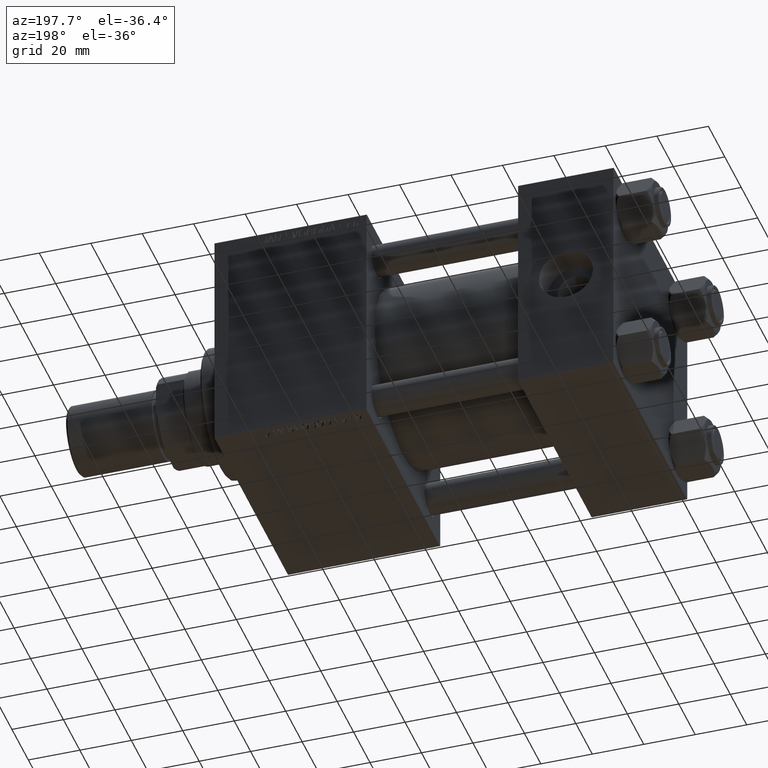
[diagram: clean part render]
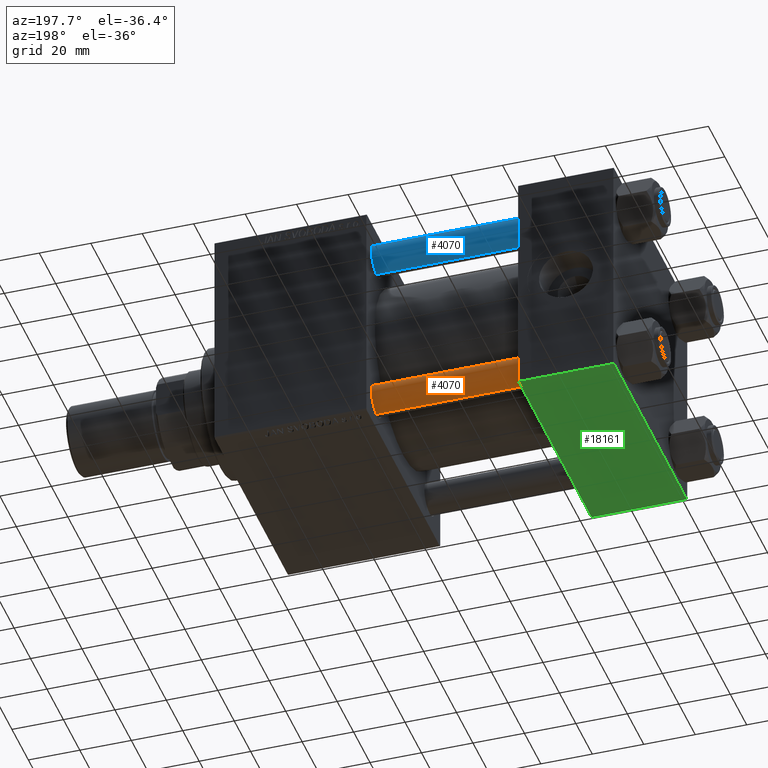
[diagram: same view with three faces highlighted in distinct colors, each labeled with its STEP entity id]
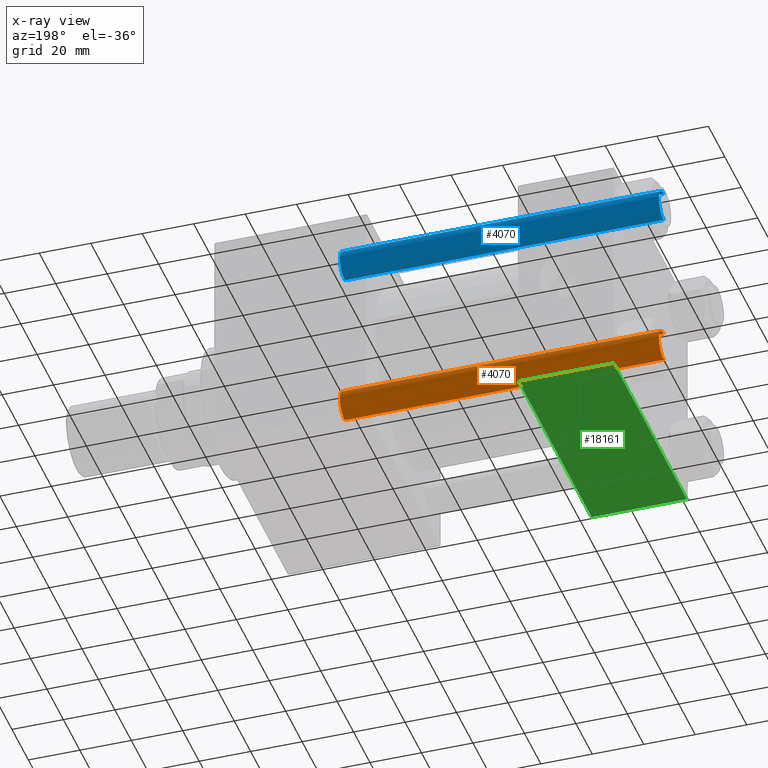
[diagram: x-ray of the same camera — body ghosted, the three highlighted faces saturated]
A machine part, auxiliary view with three faces highlighted in distinct colors.
The next image is the same camera in x-ray (body ghosted, the three faces saturated) — at least one of them is partly hidden behind the body in this view.
Their STEP definitions:

[orange] entity #4070 — the highlighted cylindrical surface (edge-blend (fillet) strip) has radius 6 mm, axis along (1, -0, -0).
#290 = DIRECTION ( 'NONE',  ( -1.000000000000000000, 0.000000000000000000, 0.000000000000000000 ) ) ;
#1446 = AXIS2_PLACEMENT_3D ( 'NONE', #46959, #39790, #32345 ) ;
#2108 = VECTOR ( 'NONE', #8176, 1000.000000000000000 ) ;
#4070 = ADVANCED_FACE ( 'NONE', ( #20723 ), #8709, .T. ) ;
#4521 = ORIENTED_EDGE ( 'NONE', *, *, #14520, .T. ) ;
#5949 = DIRECTION ( 'NONE',  ( 0.000000000000000000, 0.000000000000000000, -1.000000000000000000 ) ) ;
#5984 = VERTEX_POINT ( 'NONE', #23415 ) ;
#8176 = DIRECTION ( 'NONE',  ( -0.000000000000000000, -0.000000000000000000, -1.000000000000000000 ) ) ;
#8709 = CYLINDRICAL_SURFACE ( 'NONE', #28013, 6.000000000000000888 ) ;
#8793 = CIRCLE ( 'NONE', #1446, 6.000000000000000888 ) ;
#8928 = CARTESIAN_POINT ( 'NONE',  ( 6.000000000000000888, 7.347880794884120722E-16, 125.0000000000000000 ) ) ;
#11492 = ORIENTED_EDGE ( 'NONE', *, *, #15925, .T. ) ;
#13624 = CARTESIAN_POINT ( 'NONE',  ( 0.000000000000000000, 0.000000000000000000, 124.5000000000000000 ) ) ;
#14344 = EDGE_CURVE ( 'NONE', #37286, #5984, #31630, .T. ) ;
#14520 = EDGE_CURVE ( 'NONE', #37286, #24365, #20056, .T. ) ;
#15116 = CARTESIAN_POINT ( 'NONE',  ( 6.000000000000000888, 7.347880794884120722E-16, 124.5000000000000000 ) ) ;
#15139 = AXIS2_PLACEMENT_3D ( 'NONE', #13624, #5949, #49029 ) ;
#15925 = EDGE_CURVE ( 'NONE', #24365, #16350, #32282, .T. ) ;
#16350 = VERTEX_POINT ( 'NONE', #18502 ) ;
#16393 = DIRECTION ( 'NONE',  ( -0.000000000000000000, -0.000000000000000000, -1.000000000000000000 ) ) ;
#18502 = CARTESIAN_POINT ( 'NONE',  ( 6.000000000000000888, 7.347880794884120722E-16, 0.4999999999999865663 ) ) ;
#20056 = CIRCLE ( 'NONE', #15139, 6.000000000000000888 ) ;
#20723 = FACE_OUTER_BOUND ( 'NONE', #33827, .T. ) ;
#23415 = CARTESIAN_POINT ( 'NONE',  ( -6.000000000000000888, 0.000000000000000000, 0.4999999999999865663 ) ) ;
#24351 = ORIENTED_EDGE ( 'NONE', *, *, #14344, .F. ) ;
#24365 = VERTEX_POINT ( 'NONE', #15116 ) ;
#26088 = ORIENTED_EDGE ( 'NONE', *, *, #31229, .T. ) ;
#27936 = CARTESIAN_POINT ( 'NONE',  ( 0.000000000000000000, 0.000000000000000000, 125.0000000000000000 ) ) ;
#28013 = AXIS2_PLACEMENT_3D ( 'NONE', #27936, #16393, #290 ) ;
#31229 = EDGE_CURVE ( 'NONE', #16350, #5984, #8793, .T. ) ;
#31630 = LINE ( 'NONE', #47006, #35652 ) ;
#32282 = LINE ( 'NONE', #8928, #2108 ) ;
#32345 = DIRECTION ( 'NONE',  ( 1.000000000000000000, 0.000000000000000000, 0.000000000000000000 ) ) ;
#33827 = EDGE_LOOP ( 'NONE', ( #4521, #11492, #26088, #24351 ) ) ;
#35652 = VECTOR ( 'NONE', #47266, 1000.000000000000000 ) ;
#36341 = CARTESIAN_POINT ( 'NONE',  ( -6.000000000000000888, 0.000000000000000000, 124.5000000000000000 ) ) ;
#37286 = VERTEX_POINT ( 'NONE', #36341 ) ;
#39790 = DIRECTION ( 'NONE',  ( -0.000000000000000000, -0.000000000000000000, 1.000000000000000000 ) ) ;
#46959 = CARTESIAN_POINT ( 'NONE',  ( 0.000000000000000000, 0.000000000000000000, 0.4999999999999865663 ) ) ;
#47006 = CARTESIAN_POINT ( 'NONE',  ( -6.000000000000000888, 0.000000000000000000, 125.0000000000000000 ) ) ;
#47266 = DIRECTION ( 'NONE',  ( -0.000000000000000000, -0.000000000000000000, -1.000000000000000000 ) ) ;
#49029 = DIRECTION ( 'NONE',  ( 1.000000000000000000, 0.000000000000000000, 0.000000000000000000 ) ) ;

[blue] entity #4070 — the highlighted cylindrical surface (edge-blend (fillet) strip) has radius 6 mm, axis along (-1, -0, 0).
#290 = DIRECTION ( 'NONE',  ( -1.000000000000000000, 0.000000000000000000, 0.000000000000000000 ) ) ;
#1446 = AXIS2_PLACEMENT_3D ( 'NONE', #46959, #39790, #32345 ) ;
#2108 = VECTOR ( 'NONE', #8176, 1000.000000000000000 ) ;
#4070 = ADVANCED_FACE ( 'NONE', ( #20723 ), #8709, .T. ) ;
#4521 = ORIENTED_EDGE ( 'NONE', *, *, #14520, .T. ) ;
#5949 = DIRECTION ( 'NONE',  ( 0.000000000000000000, 0.000000000000000000, -1.000000000000000000 ) ) ;
#5984 = VERTEX_POINT ( 'NONE', #23415 ) ;
#8176 = DIRECTION ( 'NONE',  ( -0.000000000000000000, -0.000000000000000000, -1.000000000000000000 ) ) ;
#8709 = CYLINDRICAL_SURFACE ( 'NONE', #28013, 6.000000000000000888 ) ;
#8793 = CIRCLE ( 'NONE', #1446, 6.000000000000000888 ) ;
#8928 = CARTESIAN_POINT ( 'NONE',  ( 6.000000000000000888, 7.347880794884120722E-16, 125.0000000000000000 ) ) ;
#11492 = ORIENTED_EDGE ( 'NONE', *, *, #15925, .T. ) ;
#13624 = CARTESIAN_POINT ( 'NONE',  ( 0.000000000000000000, 0.000000000000000000, 124.5000000000000000 ) ) ;
#14344 = EDGE_CURVE ( 'NONE', #37286, #5984, #31630, .T. ) ;
#14520 = EDGE_CURVE ( 'NONE', #37286, #24365, #20056, .T. ) ;
#15116 = CARTESIAN_POINT ( 'NONE',  ( 6.000000000000000888, 7.347880794884120722E-16, 124.5000000000000000 ) ) ;
#15139 = AXIS2_PLACEMENT_3D ( 'NONE', #13624, #5949, #49029 ) ;
#15925 = EDGE_CURVE ( 'NONE', #24365, #16350, #32282, .T. ) ;
#16350 = VERTEX_POINT ( 'NONE', #18502 ) ;
#16393 = DIRECTION ( 'NONE',  ( -0.000000000000000000, -0.000000000000000000, -1.000000000000000000 ) ) ;
#18502 = CARTESIAN_POINT ( 'NONE',  ( 6.000000000000000888, 7.347880794884120722E-16, 0.4999999999999865663 ) ) ;
#20056 = CIRCLE ( 'NONE', #15139, 6.000000000000000888 ) ;
#20723 = FACE_OUTER_BOUND ( 'NONE', #33827, .T. ) ;
#23415 = CARTESIAN_POINT ( 'NONE',  ( -6.000000000000000888, 0.000000000000000000, 0.4999999999999865663 ) ) ;
#24351 = ORIENTED_EDGE ( 'NONE', *, *, #14344, .F. ) ;
#24365 = VERTEX_POINT ( 'NONE', #15116 ) ;
#26088 = ORIENTED_EDGE ( 'NONE', *, *, #31229, .T. ) ;
#27936 = CARTESIAN_POINT ( 'NONE',  ( 0.000000000000000000, 0.000000000000000000, 125.0000000000000000 ) ) ;
#28013 = AXIS2_PLACEMENT_3D ( 'NONE', #27936, #16393, #290 ) ;
#31229 = EDGE_CURVE ( 'NONE', #16350, #5984, #8793, .T. ) ;
#31630 = LINE ( 'NONE', #47006, #35652 ) ;
#32282 = LINE ( 'NONE', #8928, #2108 ) ;
#32345 = DIRECTION ( 'NONE',  ( 1.000000000000000000, 0.000000000000000000, 0.000000000000000000 ) ) ;
#33827 = EDGE_LOOP ( 'NONE', ( #4521, #11492, #26088, #24351 ) ) ;
#35652 = VECTOR ( 'NONE', #47266, 1000.000000000000000 ) ;
#36341 = CARTESIAN_POINT ( 'NONE',  ( -6.000000000000000888, 0.000000000000000000, 124.5000000000000000 ) ) ;
#37286 = VERTEX_POINT ( 'NONE', #36341 ) ;
#39790 = DIRECTION ( 'NONE',  ( -0.000000000000000000, -0.000000000000000000, 1.000000000000000000 ) ) ;
#46959 = CARTESIAN_POINT ( 'NONE',  ( 0.000000000000000000, 0.000000000000000000, 0.4999999999999865663 ) ) ;
#47006 = CARTESIAN_POINT ( 'NONE',  ( -6.000000000000000888, 0.000000000000000000, 125.0000000000000000 ) ) ;
#47266 = DIRECTION ( 'NONE',  ( -0.000000000000000000, -0.000000000000000000, -1.000000000000000000 ) ) ;
#49029 = DIRECTION ( 'NONE',  ( 1.000000000000000000, 0.000000000000000000, 0.000000000000000000 ) ) ;

[green] entity #18161 — the highlighted planar face has unit normal (0, 0, -1).
#1153 = EDGE_CURVE ( 'NONE', #16407, #21580, #1967, .T. ) ;
#1967 = LINE ( 'NONE', #45014, #38583 ) ;
#2188 = ORIENTED_EDGE ( 'NONE', *, *, #1153, .T. ) ;
#2954 = DIRECTION ( 'NONE',  ( 0.000000000000000000, -1.000000000000000000, -7.709882115452476934E-17 ) ) ;
#4027 = CARTESIAN_POINT ( 'NONE',  ( 37.00000000000000000, 45.00000000000000000, -44.99999999999999289 ) ) ;
#4808 = VECTOR ( 'NONE', #25843, 1000.000000000000000 ) ;
#8103 = PLANE ( 'NONE',  #15000 ) ;
#9955 = LINE ( 'NONE', #41247, #4808 ) ;
#13302 = VECTOR ( 'NONE', #38145, 1000.000000000000000 ) ;
#15000 = AXIS2_PLACEMENT_3D ( 'NONE', #4027, #31707, #23736 ) ;
#16407 = VERTEX_POINT ( 'NONE', #19515 ) ;
#18161 = ADVANCED_FACE ( 'NONE', ( #35052 ), #8103, .T. ) ;
#18415 = CARTESIAN_POINT ( 'NONE',  ( 37.00000000000000000, 44.50000000000000000, -44.99999999999999289 ) ) ;
#19515 = CARTESIAN_POINT ( 'NONE',  ( 0.000000000000000000, 44.50000000000000000, -44.99999999999999289 ) ) ;
#19997 = EDGE_CURVE ( 'NONE', #16407, #32463, #37387, .T. ) ;
#21397 = DIRECTION ( 'NONE',  ( 1.000000000000000000, 0.000000000000000000, 0.000000000000000000 ) ) ;
#21580 = VERTEX_POINT ( 'NONE', #18415 ) ;
#22476 = CARTESIAN_POINT ( 'NONE',  ( 0.000000000000000000, 45.00000000000000000, -44.99999999999999289 ) ) ;
#22960 = VECTOR ( 'NONE', #2954, 1000.000000000000000 ) ;
#23668 = ORIENTED_EDGE ( 'NONE', *, *, #44198, .T. ) ;
#23736 = DIRECTION ( 'NONE',  ( 0.000000000000000000, 1.000000000000000000, 7.709882115452478166E-17 ) ) ;
#25843 = DIRECTION ( 'NONE',  ( -1.000000000000000000, 0.000000000000000000, 0.000000000000000000 ) ) ;
#31707 = DIRECTION ( 'NONE',  ( 0.000000000000000000, 7.709882115452478166E-17, -1.000000000000000000 ) ) ;
#32463 = VERTEX_POINT ( 'NONE', #35961 ) ;
#33635 = VERTEX_POINT ( 'NONE', #45836 ) ;
#34468 = CARTESIAN_POINT ( 'NONE',  ( 37.00000000000000000, 45.00000000000000000, -44.99999999999999289 ) ) ;
#35052 = FACE_OUTER_BOUND ( 'NONE', #42157, .T. ) ;
#35961 = CARTESIAN_POINT ( 'NONE',  ( 0.000000000000000000, -44.49999999999994316, -45.00000000000000000 ) ) ;
#37387 = LINE ( 'NONE', #22476, #13302 ) ;
#38061 = LINE ( 'NONE', #34468, #22960 ) ;
#38145 = DIRECTION ( 'NONE',  ( 0.000000000000000000, -1.000000000000000000, -7.709882115452476934E-17 ) ) ;
#38168 = EDGE_CURVE ( 'NONE', #33635, #32463, #9955, .T. ) ;
#38583 = VECTOR ( 'NONE', #21397, 1000.000000000000000 ) ;
#41247 = CARTESIAN_POINT ( 'NONE',  ( 0.000000000000000000, -44.49999999999997158, -45.00000000000000000 ) ) ;
#41936 = ORIENTED_EDGE ( 'NONE', *, *, #38168, .T. ) ;
#42157 = EDGE_LOOP ( 'NONE', ( #42515, #2188, #23668, #41936 ) ) ;
#42515 = ORIENTED_EDGE ( 'NONE', *, *, #19997, .F. ) ;
#44198 = EDGE_CURVE ( 'NONE', #21580, #33635, #38061, .T. ) ;
#45014 = CARTESIAN_POINT ( 'NONE',  ( 37.00000000000000000, 44.50000000000000000, -44.99999999999999289 ) ) ;
#45836 = CARTESIAN_POINT ( 'NONE',  ( 37.00000000000000000, -44.49999999999994316, -45.00000000000000000 ) ) ;